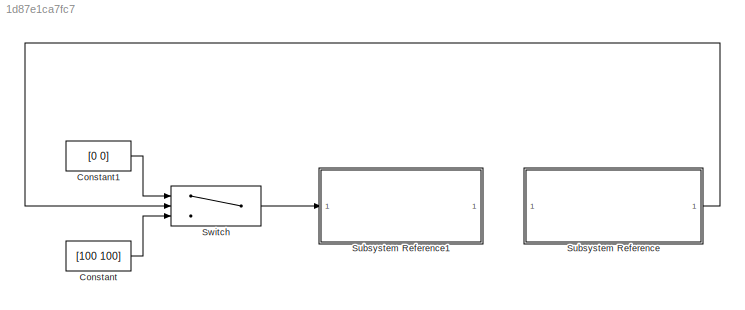
MODEL slx_1d87e1ca7fc7
KIND model
CONFIG AbsTol = auto
CONFIG EnableMultiTasking = on
CONFIG FixedStep = 0.01
CONFIG MaxStep = auto
CONFIG MinStep = auto
CONFIG RelTol = 1e-3
CONFIG SampleTimeConstraint = Unconstrained
CONFIG SolverName = FixedStepDiscrete
CONFIG StartTime = 0.0
CONFIG StopTime = inf
BLOCK [Constant] Constant
  Value = [100 100]
BLOCK [Constant] Constant1
  Value = [0 0]
BLOCK [SubSystem] Subsystem Reference
  ReferencedSubsystem = Encoder_A_Metros
BLOCK [SubSystem] Subsystem Reference1
  ReferencedSubsystem = Salida_Motores
BLOCK [Switch] Switch
  Criteria = u2 > Threshold
  InputSameDT = off
  SaturateOnIntegerOverflow = off
  Threshold = 2.45
LINE Constant1:1 -> Switch:1
LINE Constant:1 -> Switch:3
LINE Subsystem Reference:1 -> Switch:2
LINE Switch:1 -> Subsystem Reference1:1
